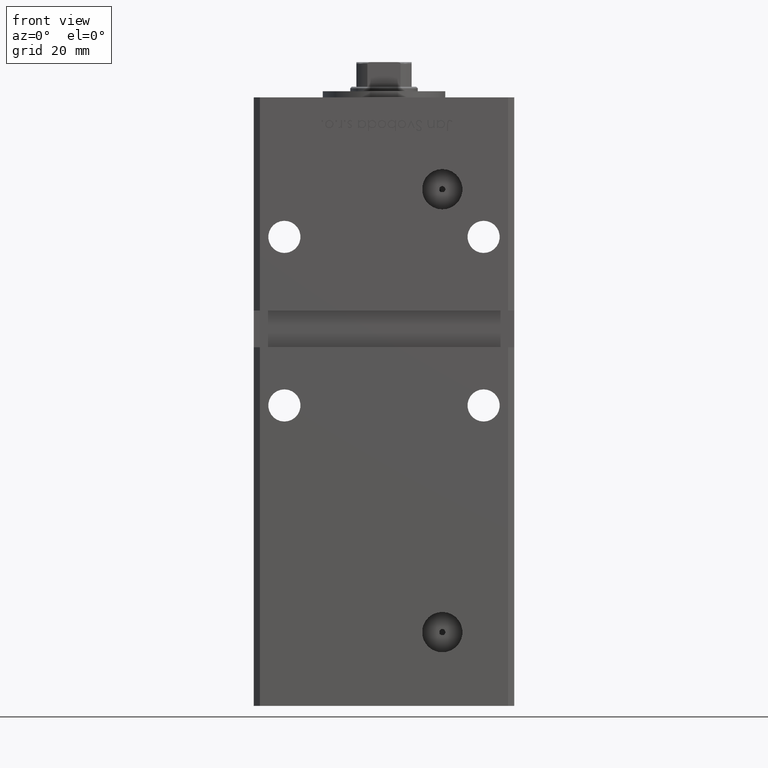
[diagram: clean part render]
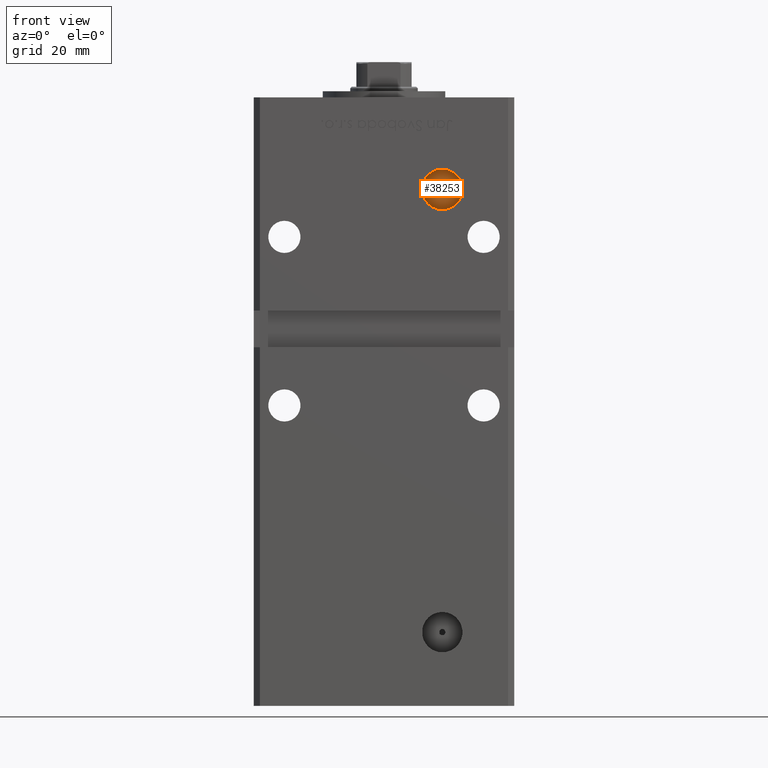
[diagram: same view with one face highlighted and labeled with its STEP entity id]
A machine part, front view. The second image highlights one B-rep face of the part: STEP entity #38253.
In plain terms, the highlighted planar face has unit normal (0, -1, 0).
Its self-contained STEP definition (entity closure, byte-faithful):
#2540 = ORIENTED_EDGE ( 'NONE', *, *, #37493, .F. ) ;
#2642 = CIRCLE ( 'NONE', #49934, 1.000000000000000888 ) ;
#4757 = DIRECTION ( 'NONE',  ( 0.000000000000000000, -0.000000000000000000, -1.000000000000000000 ) ) ;
#5621 = CARTESIAN_POINT ( 'NONE',  ( 18.99999999999997158, -24.50000000000000711, 153.5000000000000000 ) ) ;
#5884 = DIRECTION ( 'NONE',  ( 0.000000000000000000, 0.000000000000000000, -1.000000000000000000 ) ) ;
#6877 = AXIS2_PLACEMENT_3D ( 'NONE', #36342, #40633, #11867 ) ;
#10254 = VERTEX_POINT ( 'NONE', #31091 ) ;
#10992 = CARTESIAN_POINT ( 'NONE',  ( 18.99999999999997158, -24.50000000000000711, 153.5000000000000000 ) ) ;
#11867 = DIRECTION ( 'NONE',  ( 0.000000000000000000, 0.000000000000000000, -1.000000000000000000 ) ) ;
#12849 = FACE_OUTER_BOUND ( 'NONE', #29874, .T. ) ;
#13768 = ORIENTED_EDGE ( 'NONE', *, *, #23833, .F. ) ;
#14904 = DIRECTION ( 'NONE',  ( 0.000000000000000000, 0.000000000000000000, -1.000000000000000000 ) ) ;
#16350 = CARTESIAN_POINT ( 'NONE',  ( 0.000000000000000000, -24.50000000000000711, 0.000000000000000000 ) ) ;
#18006 = AXIS2_PLACEMENT_3D ( 'NONE', #16350, #29243, #4757 ) ;
#18016 = DIRECTION ( 'NONE',  ( -0.000000000000000000, 1.000000000000000000, -0.000000000000000000 ) ) ;
#18845 = AXIS2_PLACEMENT_3D ( 'NONE', #42609, #42869, #14904 ) ;
#21293 = VERTEX_POINT ( 'NONE', #32491 ) ;
#22131 = EDGE_CURVE ( 'NONE', #10254, #21293, #22374, .T. ) ;
#22374 = CIRCLE ( 'NONE', #6877, 6.580000000000002736 ) ;
#23833 = EDGE_CURVE ( 'NONE', #27128, #47791, #2642, .T. ) ;
#23904 = CARTESIAN_POINT ( 'NONE',  ( 18.99999999999997158, -24.50000000000000711, 154.5000000000000000 ) ) ;
#24020 = CIRCLE ( 'NONE', #18845, 1.000000000000000888 ) ;
#24942 = PLANE ( 'NONE',  #18006 ) ;
#27128 = VERTEX_POINT ( 'NONE', #23904 ) ;
#29243 = DIRECTION ( 'NONE',  ( 0.000000000000000000, -1.000000000000000000, 0.000000000000000000 ) ) ;
#29778 = CIRCLE ( 'NONE', #43530, 6.580000000000002736 ) ;
#29874 = EDGE_LOOP ( 'NONE', ( #46169, #49511 ) ) ;
#31091 = CARTESIAN_POINT ( 'NONE',  ( 18.99999999999997158, -24.50000000000000711, 160.0800000000000125 ) ) ;
#32491 = CARTESIAN_POINT ( 'NONE',  ( 18.99999999999997158, -24.50000000000000711, 146.9199999999999875 ) ) ;
#36342 = CARTESIAN_POINT ( 'NONE',  ( 18.99999999999997158, -24.50000000000000711, 153.5000000000000000 ) ) ;
#37493 = EDGE_CURVE ( 'NONE', #47791, #27128, #24020, .T. ) ;
#38253 = ADVANCED_FACE ( 'NONE', ( #48887, #12849 ), #24942, .T. ) ;
#38432 = DIRECTION ( 'NONE',  ( 0.000000000000000000, -1.000000000000000000, 0.000000000000000000 ) ) ;
#40633 = DIRECTION ( 'NONE',  ( -0.000000000000000000, 1.000000000000000000, -0.000000000000000000 ) ) ;
#42609 = CARTESIAN_POINT ( 'NONE',  ( 18.99999999999997158, -24.50000000000000711, 153.5000000000000000 ) ) ;
#42869 = DIRECTION ( 'NONE',  ( 0.000000000000000000, -1.000000000000000000, 0.000000000000000000 ) ) ;
#43401 = EDGE_LOOP ( 'NONE', ( #2540, #13768 ) ) ;
#43530 = AXIS2_PLACEMENT_3D ( 'NONE', #10992, #18016, #47569 ) ;
#46169 = ORIENTED_EDGE ( 'NONE', *, *, #53109, .F. ) ;
#47569 = DIRECTION ( 'NONE',  ( 0.000000000000000000, 0.000000000000000000, -1.000000000000000000 ) ) ;
#47791 = VERTEX_POINT ( 'NONE', #49400 ) ;
#48887 = FACE_BOUND ( 'NONE', #43401, .T. ) ;
#49400 = CARTESIAN_POINT ( 'NONE',  ( 18.99999999999997158, -24.50000000000000711, 152.5000000000000000 ) ) ;
#49511 = ORIENTED_EDGE ( 'NONE', *, *, #22131, .F. ) ;
#49934 = AXIS2_PLACEMENT_3D ( 'NONE', #5621, #38432, #5884 ) ;
#53109 = EDGE_CURVE ( 'NONE', #21293, #10254, #29778, .T. ) ;